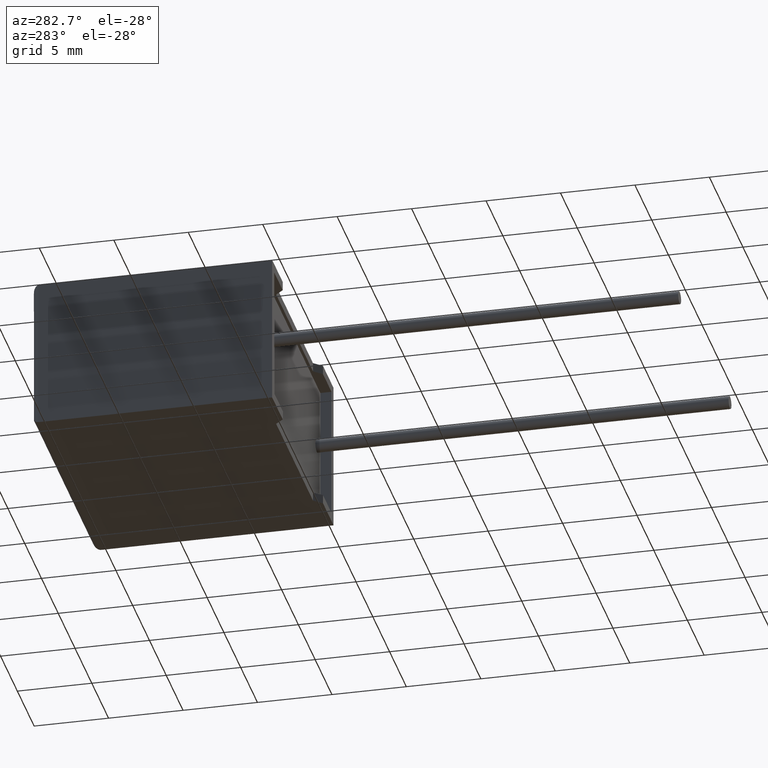
[diagram: clean part render]
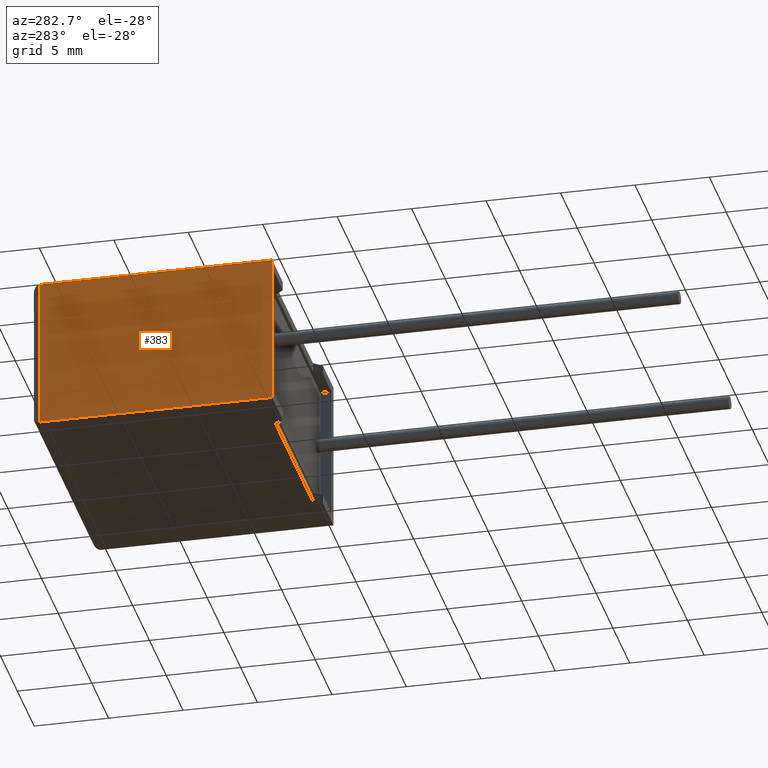
[diagram: same view with one face highlighted and labeled with its STEP entity id]
A machine part, auxiliary view. The second image highlights one B-rep face of the part: STEP entity #383.
In plain terms, the highlighted planar face has unit normal (1, 0, 0).
Its self-contained STEP definition (entity closure, byte-faithful):
#63 = CARTESIAN_POINT ( 'NONE',  ( 0.000000000000000000, 15.59999999999999964, 10.19999999999999929 ) ) ;
#227 = CARTESIAN_POINT ( 'NONE',  ( 0.000000000000000000, 15.59999999999999964, 10.19999999999999929 ) ) ;
#243 = DIRECTION ( 'NONE',  ( 0.000000000000000000, 0.000000000000000000, -1.000000000000000000 ) ) ;
#383 = ADVANCED_FACE ( 'NONE', ( #2335 ), #1637, .F. ) ;
#442 = CARTESIAN_POINT ( 'NONE',  ( 0.000000000000000000, 0.000000000000000000, 0.000000000000000000 ) ) ;
#659 = LINE ( 'NONE', #2777, #2814 ) ;
#1016 = ORIENTED_EDGE ( 'NONE', *, *, #1452, .T. ) ;
#1062 = ORIENTED_EDGE ( 'NONE', *, *, #2375, .T. ) ;
#1182 = CARTESIAN_POINT ( 'NONE',  ( 0.000000000000000000, 0.000000000000000000, 10.19999999999999929 ) ) ;
#1215 = VERTEX_POINT ( 'NONE', #2951 ) ;
#1234 = LINE ( 'NONE', #63, #1610 ) ;
#1373 = VECTOR ( 'NONE', #2148, 1000.000000000000000 ) ;
#1408 = EDGE_LOOP ( 'NONE', ( #2818, #1062, #1016, #2231 ) ) ;
#1444 = CARTESIAN_POINT ( 'NONE',  ( 0.000000000000000000, 0.000000000000000000, 10.19999999999999929 ) ) ;
#1452 = EDGE_CURVE ( 'NONE', #1521, #2873, #2968, .T. ) ;
#1521 = VERTEX_POINT ( 'NONE', #3038 ) ;
#1610 = VECTOR ( 'NONE', #243, 1000.000000000000000 ) ;
#1637 = PLANE ( 'NONE',  #2236 ) ;
#1884 = DIRECTION ( 'NONE',  ( 1.000000000000000000, 0.000000000000000000, 0.000000000000000000 ) ) ;
#2097 = VECTOR ( 'NONE', #2481, 1000.000000000000000 ) ;
#2121 = DIRECTION ( 'NONE',  ( 0.000000000000000000, 0.000000000000000000, -1.000000000000000000 ) ) ;
#2148 = DIRECTION ( 'NONE',  ( -0.000000000000000000, -0.000000000000000000, -1.000000000000000000 ) ) ;
#2231 = ORIENTED_EDGE ( 'NONE', *, *, #2647, .F. ) ;
#2236 = AXIS2_PLACEMENT_3D ( 'NONE', #1182, #1884, #2121 ) ;
#2248 = CARTESIAN_POINT ( 'NONE',  ( 0.000000000000000000, 0.000000000000000000, 0.000000000000000000 ) ) ;
#2335 = FACE_OUTER_BOUND ( 'NONE', #1408, .T. ) ;
#2375 = EDGE_CURVE ( 'NONE', #2976, #1521, #1234, .T. ) ;
#2393 = LINE ( 'NONE', #1444, #1373 ) ;
#2481 = DIRECTION ( 'NONE',  ( -0.000000000000000000, -1.000000000000000000, -0.000000000000000000 ) ) ;
#2532 = DIRECTION ( 'NONE',  ( -0.000000000000000000, -1.000000000000000000, -0.000000000000000000 ) ) ;
#2647 = EDGE_CURVE ( 'NONE', #1215, #2873, #2393, .T. ) ;
#2777 = CARTESIAN_POINT ( 'NONE',  ( 0.000000000000000000, 0.000000000000000000, 10.19999999999999929 ) ) ;
#2814 = VECTOR ( 'NONE', #2532, 1000.000000000000000 ) ;
#2818 = ORIENTED_EDGE ( 'NONE', *, *, #2862, .F. ) ;
#2862 = EDGE_CURVE ( 'NONE', #2976, #1215, #659, .T. ) ;
#2873 = VERTEX_POINT ( 'NONE', #442 ) ;
#2951 = CARTESIAN_POINT ( 'NONE',  ( 0.000000000000000000, 0.000000000000000000, 10.19999999999999929 ) ) ;
#2968 = LINE ( 'NONE', #2248, #2097 ) ;
#2976 = VERTEX_POINT ( 'NONE', #227 ) ;
#3038 = CARTESIAN_POINT ( 'NONE',  ( 0.000000000000000000, 15.59999999999999964, 0.000000000000000000 ) ) ;